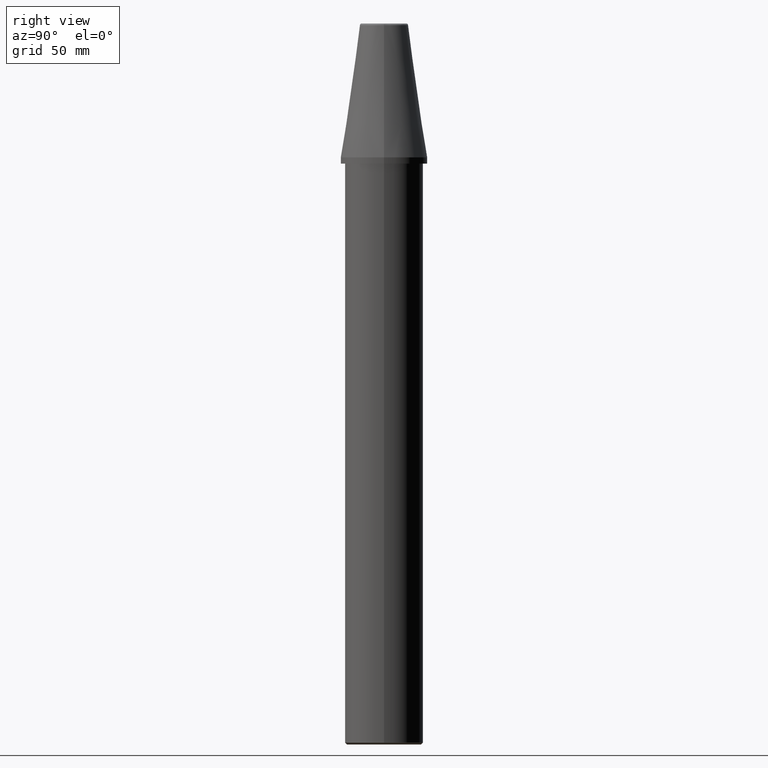
[diagram: clean part render]
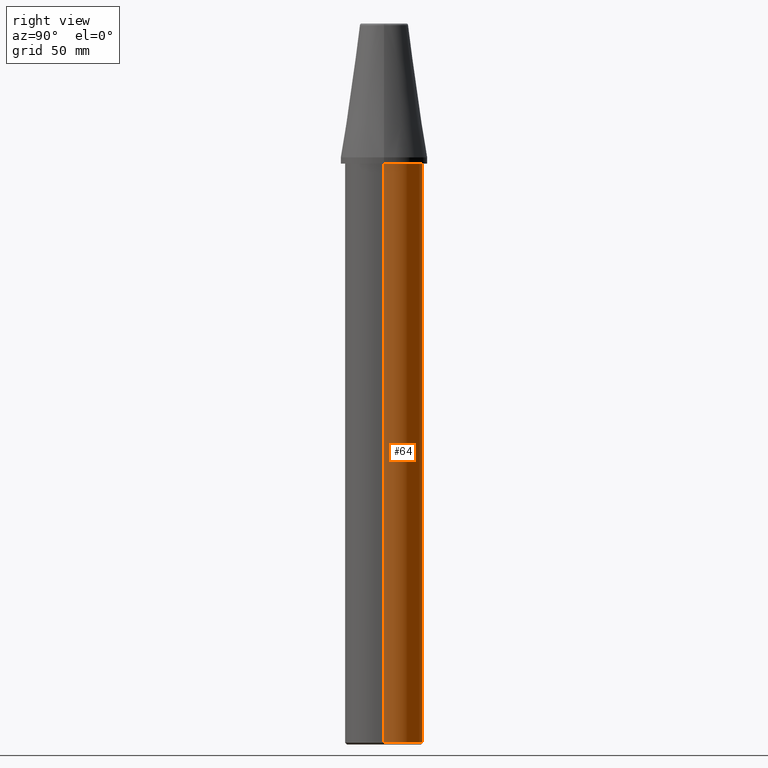
[diagram: same view with one face highlighted and labeled with its STEP entity id]
A machine part, right view. The second image highlights one B-rep face of the part: STEP entity #64.
In plain terms, the highlighted cylindrical surface (partial cylindrical patch) has radius 20 mm, axis along (0, 0, 1).
Its self-contained STEP definition (entity closure, byte-faithful):
#23 = CARTESIAN_POINT ( 'NONE',  ( -20.00000000000000000, 2.449293598294706500E-015, -3.200000000000008200 ) ) ;
#25 = EDGE_CURVE ( 'NONE', #264, #116, #68, .T. ) ;
#33 = EDGE_CURVE ( 'NONE', #115, #116, #287, .T. ) ;
#59 = LINE ( 'NONE', #166, #190 ) ;
#64 = ADVANCED_FACE ( 'NONE', ( #413 ), #154, .T. ) ;
#68 = CIRCLE ( 'NONE', #298, 20.00000000000000000 ) ;
#89 = DIRECTION ( 'NONE',  ( 0.0000000000000000000, 0.0000000000000000000, 1.000000000000000000 ) ) ;
#115 = VERTEX_POINT ( 'NONE', #400 ) ;
#116 = VERTEX_POINT ( 'NONE', #385 ) ;
#119 = AXIS2_PLACEMENT_3D ( 'NONE', #184, #183, #181 ) ;
#132 = AXIS2_PLACEMENT_3D ( 'NONE', #393, #357, #381 ) ;
#154 = CYLINDRICAL_SURFACE ( 'NONE', #132, 20.00000000000000000 ) ;
#161 = VERTEX_POINT ( 'NONE', #223 ) ;
#166 = CARTESIAN_POINT ( 'NONE',  ( -20.00000000000000000, 2.449293598294706500E-015, 75.00849435290182000 ) ) ;
#172 = ORIENTED_EDGE ( 'NONE', *, *, #25, .T. ) ;
#173 = EDGE_CURVE ( 'NONE', #115, #161, #239, .T. ) ;
#174 = VECTOR ( 'NONE', #361, 1000.000000000000000 ) ;
#181 = DIRECTION ( 'NONE',  ( 1.000000000000000000, 0.0000000000000000000, 0.0000000000000000000 ) ) ;
#183 = DIRECTION ( 'NONE',  ( 0.0000000000000000000, 0.0000000000000000000, 1.000000000000000000 ) ) ;
#184 = CARTESIAN_POINT ( 'NONE',  ( 0.0000000000000000000, 0.0000000000000000000, -298.9999999999999400 ) ) ;
#190 = VECTOR ( 'NONE', #89, 1000.000000000000000 ) ;
#200 = ORIENTED_EDGE ( 'NONE', *, *, #336, .T. ) ;
#223 = CARTESIAN_POINT ( 'NONE',  ( -20.00000000000000000, 2.449293598294706500E-015, -298.9999999999999400 ) ) ;
#239 = CIRCLE ( 'NONE', #119, 20.00000000000000000 ) ;
#264 = VERTEX_POINT ( 'NONE', #23 ) ;
#287 = LINE ( 'NONE', #334, #174 ) ;
#298 = AXIS2_PLACEMENT_3D ( 'NONE', #362, #367, #368 ) ;
#316 = ORIENTED_EDGE ( 'NONE', *, *, #33, .F. ) ;
#334 = CARTESIAN_POINT ( 'NONE',  ( 20.00000000000000000, 0.0000000000000000000, 75.00849435290182000 ) ) ;
#336 = EDGE_CURVE ( 'NONE', #161, #264, #59, .T. ) ;
#357 = DIRECTION ( 'NONE',  ( 0.0000000000000000000, 0.0000000000000000000, 1.000000000000000000 ) ) ;
#361 = DIRECTION ( 'NONE',  ( 0.0000000000000000000, 0.0000000000000000000, 1.000000000000000000 ) ) ;
#362 = CARTESIAN_POINT ( 'NONE',  ( 0.0000000000000000000, 0.0000000000000000000, -3.200000000000008200 ) ) ;
#367 = DIRECTION ( 'NONE',  ( -0.0000000000000000000, -0.0000000000000000000, -1.000000000000000000 ) ) ;
#368 = DIRECTION ( 'NONE',  ( 1.000000000000000000, 0.0000000000000000000, 0.0000000000000000000 ) ) ;
#369 = EDGE_LOOP ( 'NONE', ( #389, #200, #172, #316 ) ) ;
#381 = DIRECTION ( 'NONE',  ( 1.000000000000000000, 0.0000000000000000000, 0.0000000000000000000 ) ) ;
#385 = CARTESIAN_POINT ( 'NONE',  ( 20.00000000000000000, 0.0000000000000000000, -3.200000000000008200 ) ) ;
#389 = ORIENTED_EDGE ( 'NONE', *, *, #173, .T. ) ;
#393 = CARTESIAN_POINT ( 'NONE',  ( 0.0000000000000000000, 0.0000000000000000000, 75.00849435290182000 ) ) ;
#400 = CARTESIAN_POINT ( 'NONE',  ( 20.00000000000000000, 0.0000000000000000000, -298.9999999999999400 ) ) ;
#413 = FACE_OUTER_BOUND ( 'NONE', #369, .T. ) ;